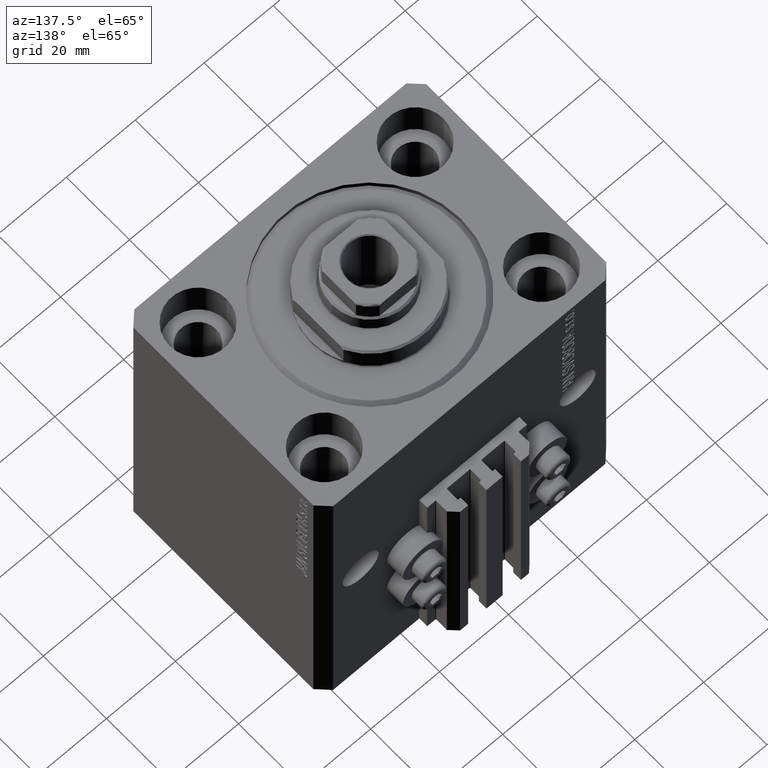
[diagram: clean part render]
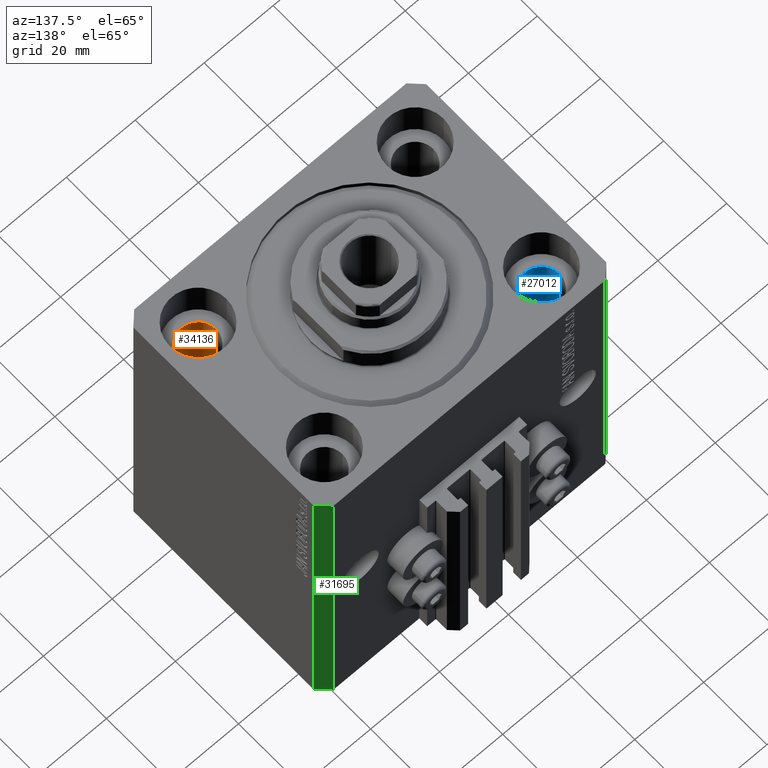
[diagram: same view with three faces highlighted in distinct colors, each labeled with its STEP entity id]
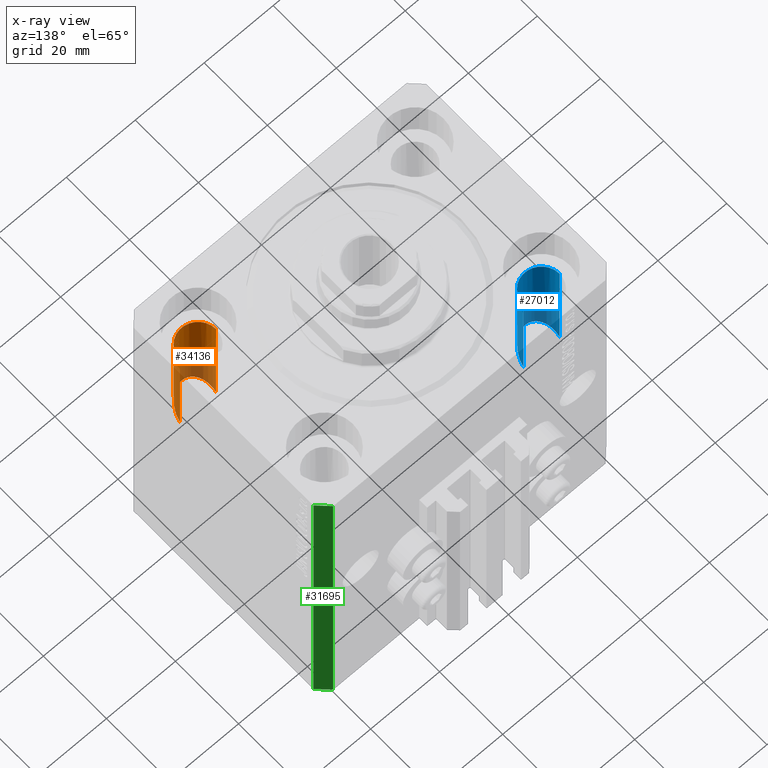
[diagram: x-ray of the same camera — body ghosted, the three highlighted faces saturated]
A machine part, auxiliary view with three faces highlighted in distinct colors.
The next image is the same camera in x-ray (body ghosted, the three faces saturated) — at least one of them is partly hidden behind the body in this view.
Their STEP definitions:

[orange] entity #34136 — the highlighted cylindrical surface (edge-blend (fillet) strip) has radius 5.25 mm, axis along (0, 0, 1).
#633 = CYLINDRICAL_SURFACE ( 'NONE', #30375, 5.249999999999997335 ) ;
#735 = VERTEX_POINT ( 'NONE', #8358 ) ;
#2703 = CARTESIAN_POINT ( 'NONE',  ( 26.25000000000001776, -30.49999999999999645, -32.50000000000000711 ) ) ;
#3482 =( BOUNDED_CURVE ( )  B_SPLINE_CURVE ( 3, ( #46736, #10389, #2703, #14711 ),
 .UNSPECIFIED., .F., .F. ) 
 B_SPLINE_CURVE_WITH_KNOTS ( ( 4, 4 ),
 ( 4.712388980384689674, 7.853981633974482790 ),
 .UNSPECIFIED. ) 
 CURVE ( )  GEOMETRIC_REPRESENTATION_ITEM ( )  RATIONAL_B_SPLINE_CURVE ( ( 1.000000000000000000, 0.3333333333333333703, 0.3333333333333333703, 1.000000000000000000 ) ) 
 REPRESENTATION_ITEM ( '' )  );
#4904 = CARTESIAN_POINT ( 'NONE',  ( 36.75000000000000000, -20.00000000000000000, -93.00000000000000000 ) ) ;
#4953 = DIRECTION ( 'NONE',  ( -0.000000000000000000, -0.000000000000000000, 1.000000000000000000 ) ) ;
#5056 = AXIS2_PLACEMENT_3D ( 'NONE', #5647, #27316, #42452 ) ;
#5647 = CARTESIAN_POINT ( 'NONE',  ( 31.50000000000000000, -20.00000000000000000, -11.00000000000000000 ) ) ;
#8358 = CARTESIAN_POINT ( 'NONE',  ( 36.75000000000000000, -20.00000000000000000, -11.00000000000000000 ) ) ;
#8822 = CARTESIAN_POINT ( 'NONE',  ( 26.25000000000001066, -20.00000000000000355, -43.00000000000000000 ) ) ;
#10389 = CARTESIAN_POINT ( 'NONE',  ( 36.75000000000000000, -30.49999999999999645, -32.50000000000000711 ) ) ;
#11190 = CIRCLE ( 'NONE', #5056, 5.249999999999997335 ) ;
#12012 = CARTESIAN_POINT ( 'NONE',  ( 26.25000000000000355, -20.00000000000000000, -11.00000000000000000 ) ) ;
#12115 = LINE ( 'NONE', #4904, #22153 ) ;
#14711 = CARTESIAN_POINT ( 'NONE',  ( 26.25000000000001066, -20.00000000000000355, -43.00000000000000000 ) ) ;
#14742 = CARTESIAN_POINT ( 'NONE',  ( 36.75000000000000711, -20.00000000000000355, -43.00000000000000000 ) ) ;
#15518 = VERTEX_POINT ( 'NONE', #12012 ) ;
#15523 = ORIENTED_EDGE ( 'NONE', *, *, #39101, .T. ) ;
#15767 = CARTESIAN_POINT ( 'NONE',  ( 31.50000000000000000, -20.00000000000000000, -93.00000000000000000 ) ) ;
#19061 = ORIENTED_EDGE ( 'NONE', *, *, #27207, .T. ) ;
#22153 = VECTOR ( 'NONE', #45092, 1000.000000000000000 ) ;
#22737 = VECTOR ( 'NONE', #4953, 1000.000000000000000 ) ;
#23234 = DIRECTION ( 'NONE',  ( 1.000000000000000000, 0.000000000000000000, 0.000000000000000000 ) ) ;
#25823 = ORIENTED_EDGE ( 'NONE', *, *, #44448, .F. ) ;
#27207 = EDGE_CURVE ( 'NONE', #38655, #32427, #3482, .T. ) ;
#27316 = DIRECTION ( 'NONE',  ( 0.000000000000000000, 0.000000000000000000, 1.000000000000000000 ) ) ;
#27333 = CARTESIAN_POINT ( 'NONE',  ( 26.25000000000000355, -20.00000000000000000, -93.00000000000000000 ) ) ;
#30375 = AXIS2_PLACEMENT_3D ( 'NONE', #15767, #44644, #23234 ) ;
#32427 = VERTEX_POINT ( 'NONE', #8822 ) ;
#34136 = ADVANCED_FACE ( 'NONE', ( #37433 ), #633, .F. ) ;
#34459 = EDGE_LOOP ( 'NONE', ( #19061, #36052, #15523, #25823 ) ) ;
#36052 = ORIENTED_EDGE ( 'NONE', *, *, #36459, .T. ) ;
#36459 = EDGE_CURVE ( 'NONE', #32427, #15518, #41295, .T. ) ;
#37433 = FACE_OUTER_BOUND ( 'NONE', #34459, .T. ) ;
#38655 = VERTEX_POINT ( 'NONE', #14742 ) ;
#39101 = EDGE_CURVE ( 'NONE', #15518, #735, #11190, .T. ) ;
#41295 = LINE ( 'NONE', #27333, #22737 ) ;
#42452 = DIRECTION ( 'NONE',  ( 1.000000000000000000, 0.000000000000000000, 0.000000000000000000 ) ) ;
#44448 = EDGE_CURVE ( 'NONE', #38655, #735, #12115, .T. ) ;
#44644 = DIRECTION ( 'NONE',  ( -0.000000000000000000, -0.000000000000000000, 1.000000000000000000 ) ) ;
#45092 = DIRECTION ( 'NONE',  ( -0.000000000000000000, -0.000000000000000000, 1.000000000000000000 ) ) ;
#46736 = CARTESIAN_POINT ( 'NONE',  ( 36.75000000000000711, -20.00000000000000355, -43.00000000000000000 ) ) ;

[blue] entity #27012 — the highlighted cylindrical surface (edge-blend (fillet) strip) has radius 5.25 mm, axis along (0, 0, 1).
#163 = CIRCLE ( 'NONE', #24750, 5.250000000000000888 ) ;
#4208 = VERTEX_POINT ( 'NONE', #19219 ) ;
#4891 = FACE_OUTER_BOUND ( 'NONE', #9900, .T. ) ;
#5678 = ORIENTED_EDGE ( 'NONE', *, *, #19789, .F. ) ;
#5876 = CARTESIAN_POINT ( 'NONE',  ( -36.75000000000000000, 20.00000000000000000, -93.00000000000000000 ) ) ;
#7833 = ORIENTED_EDGE ( 'NONE', *, *, #23324, .T. ) ;
#7882 = EDGE_CURVE ( 'NONE', #16814, #24972, #28487, .T. ) ;
#8131 =( BOUNDED_CURVE ( )  B_SPLINE_CURVE ( 3, ( #36705, #25629, #28543, #18641 ),
 .UNSPECIFIED., .F., .F. ) 
 B_SPLINE_CURVE_WITH_KNOTS ( ( 4, 4 ),
 ( 4.712388980384689674, 7.853981633974482790 ),
 .UNSPECIFIED. ) 
 CURVE ( )  GEOMETRIC_REPRESENTATION_ITEM ( )  RATIONAL_B_SPLINE_CURVE ( ( 1.000000000000000000, 0.3333333333333333703, 0.3333333333333333703, 1.000000000000000000 ) ) 
 REPRESENTATION_ITEM ( '' )  );
#8262 = DIRECTION ( 'NONE',  ( 1.000000000000000000, 0.000000000000000000, 0.000000000000000000 ) ) ;
#9900 = EDGE_LOOP ( 'NONE', ( #45795, #44826, #7833, #5678 ) ) ;
#11393 = CARTESIAN_POINT ( 'NONE',  ( -31.50000000000000000, 20.00000000000000000, -93.00000000000000000 ) ) ;
#13748 = VERTEX_POINT ( 'NONE', #19154 ) ;
#14487 = CARTESIAN_POINT ( 'NONE',  ( -36.75000000000000000, 20.00000000000000000, -11.00000000000000000 ) ) ;
#15061 = VECTOR ( 'NONE', #31866, 1000.000000000000000 ) ;
#16814 = VERTEX_POINT ( 'NONE', #33312 ) ;
#18641 = CARTESIAN_POINT ( 'NONE',  ( -36.74999999999999289, 20.00000000000000355, -43.00000000000000000 ) ) ;
#19154 = CARTESIAN_POINT ( 'NONE',  ( -26.25000000000000000, 20.00000000000000000, -11.00000000000000000 ) ) ;
#19219 = CARTESIAN_POINT ( 'NONE',  ( -26.24999999999999645, 20.00000000000000355, -43.00000000000000000 ) ) ;
#19789 = EDGE_CURVE ( 'NONE', #4208, #13748, #22236, .T. ) ;
#22236 = LINE ( 'NONE', #40283, #46837 ) ;
#23324 = EDGE_CURVE ( 'NONE', #24972, #13748, #163, .T. ) ;
#24750 = AXIS2_PLACEMENT_3D ( 'NONE', #36983, #44425, #40824 ) ;
#24972 = VERTEX_POINT ( 'NONE', #14487 ) ;
#25629 = CARTESIAN_POINT ( 'NONE',  ( -26.24999999999999645, 9.500000000000012434, -32.50000000000001421 ) ) ;
#27012 = ADVANCED_FACE ( 'NONE', ( #4891 ), #44358, .F. ) ;
#28487 = LINE ( 'NONE', #5876, #15061 ) ;
#28543 = CARTESIAN_POINT ( 'NONE',  ( -36.74999999999999289, 9.500000000000012434, -32.50000000000001421 ) ) ;
#28593 = AXIS2_PLACEMENT_3D ( 'NONE', #11393, #44601, #8262 ) ;
#31866 = DIRECTION ( 'NONE',  ( -0.000000000000000000, -0.000000000000000000, 1.000000000000000000 ) ) ;
#33312 = CARTESIAN_POINT ( 'NONE',  ( -36.74999999999999289, 20.00000000000000355, -43.00000000000000000 ) ) ;
#36705 = CARTESIAN_POINT ( 'NONE',  ( -26.24999999999999645, 20.00000000000000355, -43.00000000000000000 ) ) ;
#36922 = DIRECTION ( 'NONE',  ( -0.000000000000000000, -0.000000000000000000, 1.000000000000000000 ) ) ;
#36983 = CARTESIAN_POINT ( 'NONE',  ( -31.50000000000000000, 20.00000000000000000, -11.00000000000000000 ) ) ;
#40283 = CARTESIAN_POINT ( 'NONE',  ( -26.25000000000000000, 20.00000000000000000, -93.00000000000000000 ) ) ;
#40824 = DIRECTION ( 'NONE',  ( 1.000000000000000000, 0.000000000000000000, 0.000000000000000000 ) ) ;
#44358 = CYLINDRICAL_SURFACE ( 'NONE', #28593, 5.250000000000000888 ) ;
#44425 = DIRECTION ( 'NONE',  ( 0.000000000000000000, 0.000000000000000000, 1.000000000000000000 ) ) ;
#44601 = DIRECTION ( 'NONE',  ( -0.000000000000000000, -0.000000000000000000, 1.000000000000000000 ) ) ;
#44826 = ORIENTED_EDGE ( 'NONE', *, *, #7882, .T. ) ;
#45795 = ORIENTED_EDGE ( 'NONE', *, *, #46899, .T. ) ;
#46837 = VECTOR ( 'NONE', #36922, 1000.000000000000000 ) ;
#46899 = EDGE_CURVE ( 'NONE', #4208, #16814, #8131, .T. ) ;

[green] entity #31695 — the highlighted planar face has unit normal (0.7071, 0.7071, 0).
#553 = DIRECTION ( 'NONE',  ( 0.000000000000000000, 0.000000000000000000, 1.000000000000000000 ) ) ;
#3807 = DIRECTION ( 'NONE',  ( 0.000000000000000000, 0.000000000000000000, 1.000000000000000000 ) ) ;
#3858 = VERTEX_POINT ( 'NONE', #26976 ) ;
#4498 = CARTESIAN_POINT ( 'NONE',  ( 42.50000000000051870, 28.49999999999995381, -93.00000000000000000 ) ) ;
#5064 = CARTESIAN_POINT ( 'NONE',  ( 42.50000000000051870, 28.49999999999995381, 0.000000000000000000 ) ) ;
#5290 = EDGE_CURVE ( 'NONE', #20616, #3858, #14844, .T. ) ;
#11500 = CARTESIAN_POINT ( 'NONE',  ( 39.50000000000056843, 31.50000000000000000, -93.00000000000000000 ) ) ;
#12073 = CARTESIAN_POINT ( 'NONE',  ( 42.50000000000051870, 28.49999999999995381, -93.00000000000000000 ) ) ;
#13370 = DIRECTION ( 'NONE',  ( 0.7071067811865594521, 0.7071067811865355823, -0.000000000000000000 ) ) ;
#14844 = LINE ( 'NONE', #4498, #31164 ) ;
#15452 = LINE ( 'NONE', #12073, #39829 ) ;
#15816 = VERTEX_POINT ( 'NONE', #27537 ) ;
#16003 = EDGE_CURVE ( 'NONE', #20616, #15816, #15452, .T. ) ;
#19092 = EDGE_LOOP ( 'NONE', ( #22204, #36996, #24521, #22500 ) ) ;
#20204 = VECTOR ( 'NONE', #41164, 1000.000000000000114 ) ;
#20597 = CARTESIAN_POINT ( 'NONE',  ( 42.50000000000051870, 28.49999999999995381, -93.00000000000000000 ) ) ;
#20616 = VERTEX_POINT ( 'NONE', #26695 ) ;
#22044 = VECTOR ( 'NONE', #3807, 1000.000000000000000 ) ;
#22204 = ORIENTED_EDGE ( 'NONE', *, *, #28151, .F. ) ;
#22500 = ORIENTED_EDGE ( 'NONE', *, *, #42459, .T. ) ;
#24217 = FACE_OUTER_BOUND ( 'NONE', #19092, .T. ) ;
#24521 = ORIENTED_EDGE ( 'NONE', *, *, #5290, .T. ) ;
#26488 = LINE ( 'NONE', #5064, #20204 ) ;
#26695 = CARTESIAN_POINT ( 'NONE',  ( 42.50000000000051870, 28.49999999999995381, -93.00000000000000000 ) ) ;
#26976 = CARTESIAN_POINT ( 'NONE',  ( 39.50000000000056843, 31.50000000000000000, -93.00000000000000000 ) ) ;
#27537 = CARTESIAN_POINT ( 'NONE',  ( 42.50000000000051870, 28.49999999999995381, 0.000000000000000000 ) ) ;
#28151 = EDGE_CURVE ( 'NONE', #15816, #31443, #26488, .T. ) ;
#31164 = VECTOR ( 'NONE', #33384, 1000.000000000000114 ) ;
#31443 = VERTEX_POINT ( 'NONE', #43969 ) ;
#31695 = ADVANCED_FACE ( 'NONE', ( #24217 ), #38896, .T. ) ;
#33384 = DIRECTION ( 'NONE',  ( -0.7071067811865356934, 0.7071067811865594521, 0.000000000000000000 ) ) ;
#36996 = ORIENTED_EDGE ( 'NONE', *, *, #16003, .F. ) ;
#38896 = PLANE ( 'NONE',  #47197 ) ;
#39829 = VECTOR ( 'NONE', #553, 1000.000000000000000 ) ;
#40859 = LINE ( 'NONE', #11500, #22044 ) ;
#41164 = DIRECTION ( 'NONE',  ( -0.7071067811865356934, 0.7071067811865594521, 0.000000000000000000 ) ) ;
#42459 = EDGE_CURVE ( 'NONE', #3858, #31443, #40859, .T. ) ;
#42730 = DIRECTION ( 'NONE',  ( -0.7071067811865355823, 0.7071067811865594521, 0.000000000000000000 ) ) ;
#43969 = CARTESIAN_POINT ( 'NONE',  ( 39.50000000000056843, 31.50000000000000000, 0.000000000000000000 ) ) ;
#47197 = AXIS2_PLACEMENT_3D ( 'NONE', #20597, #13370, #42730 ) ;